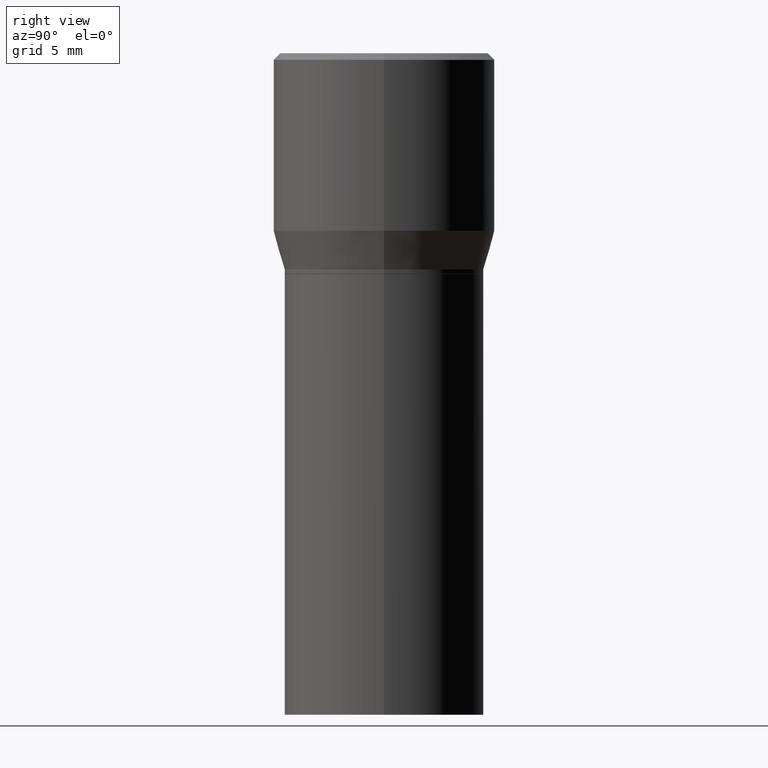
[diagram: clean part render]
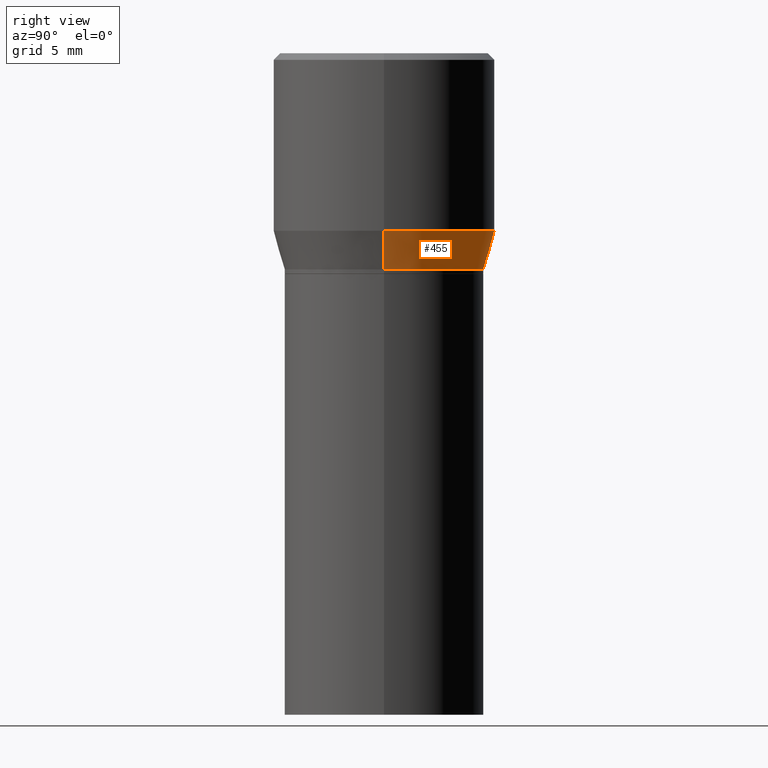
[diagram: same view with one face highlighted and labeled with its STEP entity id]
A machine part, right view. The second image highlights one B-rep face of the part: STEP entity #455.
In plain terms, the highlighted conical surface has half-angle 15 deg.
Its self-contained STEP definition (entity closure, byte-faithful):
#6 = CARTESIAN_POINT ( 'NONE',  ( 0.2265499999999999736, -3.292816050662964671E-15, -0.4900000000000001021 ) ) ;
#11 = VECTOR ( 'NONE', #170, 39.37007874015747433 ) ;
#20 = EDGE_CURVE ( 'NONE', #241, #196, #144, .T. ) ;
#23 = EDGE_CURVE ( 'NONE', #241, #252, #137, .T. ) ;
#43 = CARTESIAN_POINT ( 'NONE',  ( 9.842606206466859638E-30, -1.405263310189985589E-15, -0.4024834085625100810 ) ) ;
#54 = ORIENTED_EDGE ( 'NONE', *, *, #23, .F. ) ;
#72 = EDGE_CURVE ( 'NONE', #196, #385, #324, .T. ) ;
#77 = CARTESIAN_POINT ( 'NONE',  ( -0.2265499999999999736, 1.350011205208151600E-16, -0.4900000000000001021 ) ) ;
#83 = DIRECTION ( 'NONE',  ( -2.445468806185136597E-29, 3.491481338843145583E-15, 1.000000000000000000 ) ) ;
#84 = AXIS2_PLACEMENT_3D ( 'NONE', #88, #272, #235 ) ;
#88 = CARTESIAN_POINT ( 'NONE',  ( 1.198279715030717173E-29, -1.710825856033141537E-15, -0.4900000000000001021 ) ) ;
#106 = CARTESIAN_POINT ( 'NONE',  ( 1.198279715030717173E-29, -1.710825856033141537E-15, -0.4900000000000001021 ) ) ;
#119 = VECTOR ( 'NONE', #218, 39.37007874015747433 ) ;
#121 = CARTESIAN_POINT ( 'NONE',  ( -0.2500000000000000000, 3.710935292102651716E-16, -0.4024834085625100810 ) ) ;
#137 = LINE ( 'NONE', #321, #119 ) ;
#144 = CIRCLE ( 'NONE', #259, 0.2265499999999999736 ) ;
#157 = CIRCLE ( 'NONE', #268, 0.2500000000000000000 ) ;
#166 = DIRECTION ( 'NONE',  ( -2.445468806185136597E-29, 3.491481338843145583E-15, 1.000000000000000000 ) ) ;
#169 = DIRECTION ( 'NONE',  ( 1.000000000000000000, -6.982962677686265922E-15, 0.000000000000000000 ) ) ;
#170 = DIRECTION ( 'NONE',  ( -0.2588190451025214611, 5.211531920934551042E-15, 0.9659258262890682012 ) ) ;
#195 = DIRECTION ( 'NONE',  ( 1.000000000000000000, -6.982962677686265922E-15, 0.000000000000000000 ) ) ;
#196 = VERTEX_POINT ( 'NONE', #77 ) ;
#203 = ORIENTED_EDGE ( 'NONE', *, *, #330, .F. ) ;
#218 = DIRECTION ( 'NONE',  ( 0.2588190451025214611, 1.565188264969621573E-15, 0.9659258262890682012 ) ) ;
#235 = DIRECTION ( 'NONE',  ( 1.000000000000000000, -6.982962677686265922E-15, 0.000000000000000000 ) ) ;
#241 = VERTEX_POINT ( 'NONE', #6 ) ;
#252 = VERTEX_POINT ( 'NONE', #269 ) ;
#259 = AXIS2_PLACEMENT_3D ( 'NONE', #106, #166, #169 ) ;
#268 = AXIS2_PLACEMENT_3D ( 'NONE', #43, #83, #195 ) ;
#269 = CARTESIAN_POINT ( 'NONE',  ( 0.2500000000000000000, -3.151003979611552069E-15, -0.4024834085625100810 ) ) ;
#272 = DIRECTION ( 'NONE',  ( -2.445468806185136597E-29, 3.491481338843145583E-15, 1.000000000000000000 ) ) ;
#300 = CONICAL_SURFACE ( 'NONE', #84, 0.2265499999999999736, 0.2617993877991501295 ) ;
#320 = ORIENTED_EDGE ( 'NONE', *, *, #20, .T. ) ;
#321 = CARTESIAN_POINT ( 'NONE',  ( 0.2265499999999999736, -3.292816050662964671E-15, -0.4900000000000001021 ) ) ;
#324 = LINE ( 'NONE', #328, #11 ) ;
#328 = CARTESIAN_POINT ( 'NONE',  ( -0.2265499999999999736, -1.010912881686348269E-16, -0.4900000000000001021 ) ) ;
#330 = EDGE_CURVE ( 'NONE', #252, #385, #157, .T. ) ;
#378 = FACE_OUTER_BOUND ( 'NONE', #382, .T. ) ;
#382 = EDGE_LOOP ( 'NONE', ( #320, #464, #203, #54 ) ) ;
#385 = VERTEX_POINT ( 'NONE', #121 ) ;
#455 = ADVANCED_FACE ( 'NONE', ( #378 ), #300, .T. ) ;
#464 = ORIENTED_EDGE ( 'NONE', *, *, #72, .T. ) ;